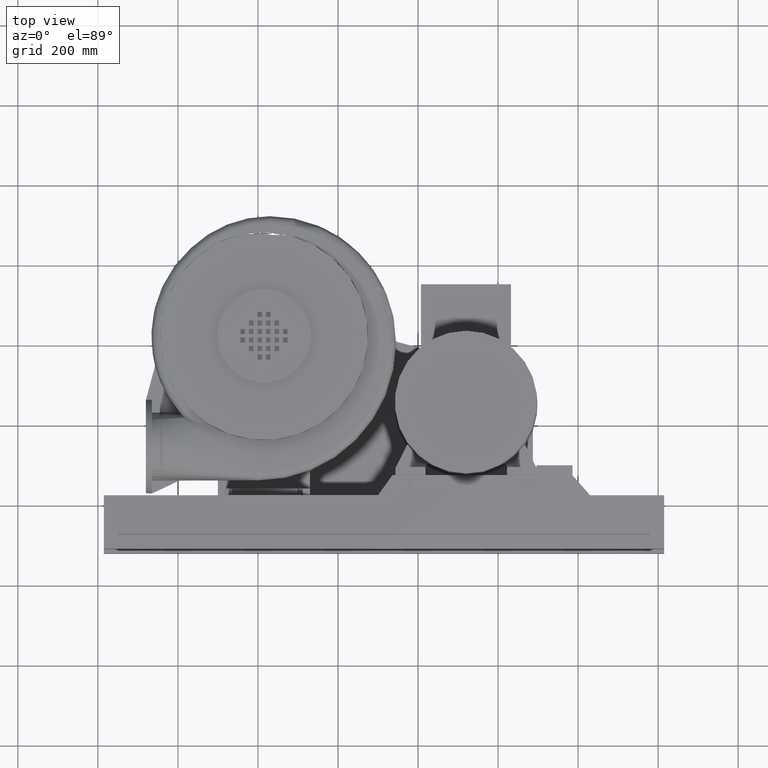
[diagram: clean part render]
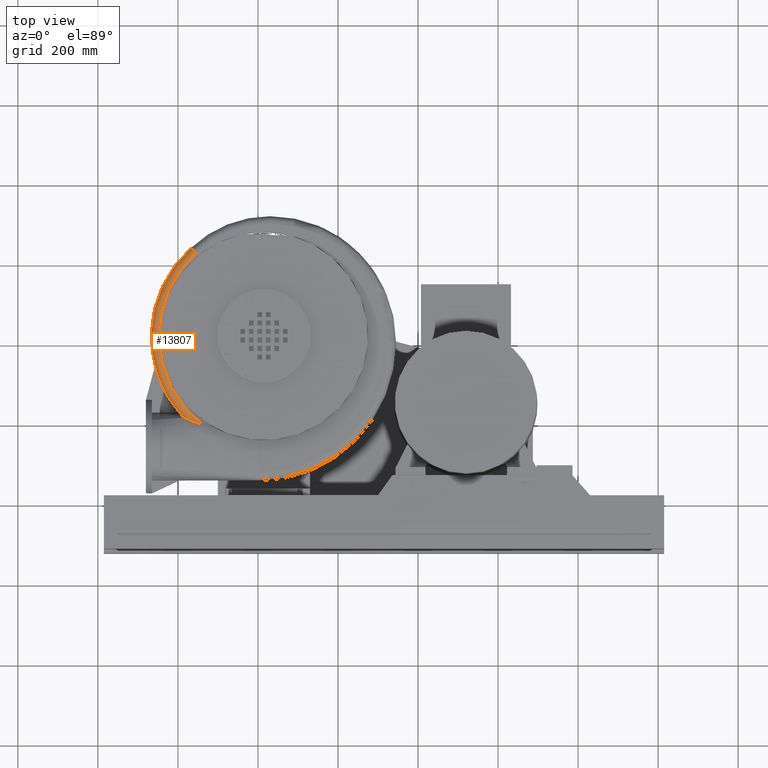
[diagram: same view with one face highlighted and labeled with its STEP entity id]
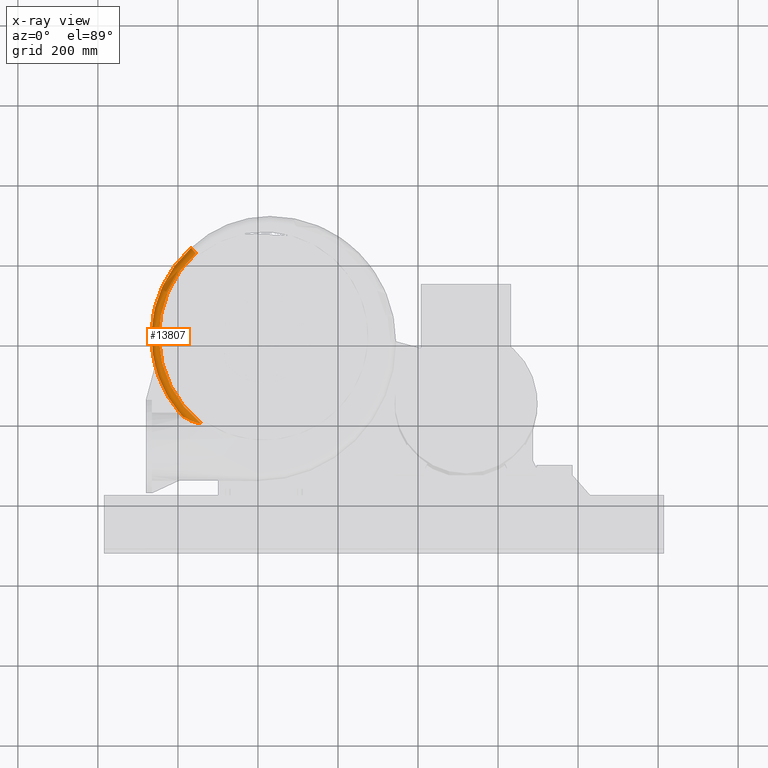
[diagram: x-ray of the same camera — body ghosted, the highlighted face saturated]
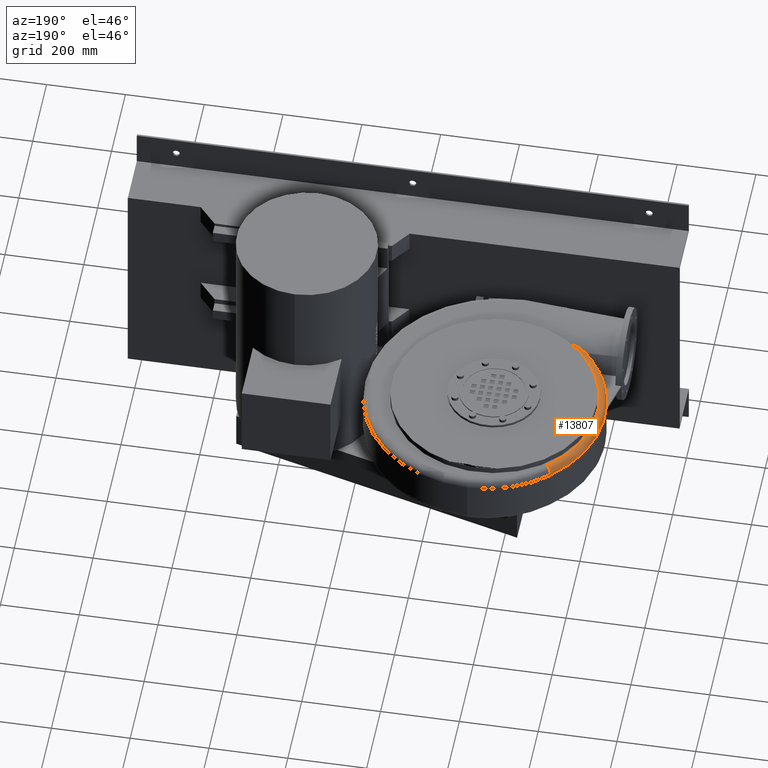
[diagram: same view with one face highlighted and labeled with its STEP entity id]
A machine part, top view. The second image highlights one B-rep face of the part: STEP entity #13807.
The next image is the same camera in x-ray: the body ghosted, the highlighted face saturated — about 0% of this face is hidden behind the body in this view.
A second angle (auxiliary view) of the same face is appended — the face is thin or edge-on in the first view.
In plain terms, the highlighted toroidal blend (fillet) surface has major radius 278 mm and minor (blend) radius 18 mm.
Its self-contained STEP definition (entity closure, byte-faithful):
#13720=CARTESIAN_POINT('',(-167.43618941037317,235.53333333333345,49.499999999999915));
#13721=VERTEX_POINT('',#13720);
#13729=CARTESIAN_POINT('',(-155.19419237354373,222.3333333333332,67.499999999999915));
#13730=VERTEX_POINT('',#13729);
#13731=CARTESIAN_POINT('',(-155.19419237354373,222.3333333333332,67.499999999999915));
#13732=CARTESIAN_POINT('',(-155.20071336581015,222.34036446363956,67.499999999999915));
#13733=CARTESIAN_POINT('',(-155.20723435682709,222.34739559272447,67.499992339340025));
#13734=CARTESIAN_POINT('',(-156.03273150284258,223.23747155980527,67.498052800552287));
#13735=CARTESIAN_POINT('',(-156.84951386152258,224.11815544676332,67.375301420065711));
#13736=CARTESIAN_POINT('',(-158.45411250034505,225.84829908996159,66.891832147624314));
#13737=CARTESIAN_POINT('',(-159.23789187840543,226.69340607967783,66.53233471986961));
#13738=CARTESIAN_POINT('',(-161.4579250546422,229.08715793586549,65.142045660403284));
#13739=CARTESIAN_POINT('',(-162.78849036491593,230.52185395685851,63.811209274200628));
#13740=CARTESIAN_POINT('',(-165.02764017208051,232.93625307770924,60.474660104682073));
#13741=CARTESIAN_POINT('',(-165.91488514568582,233.89294615211352,58.500953948427139));
#13742=CARTESIAN_POINT('',(-167.12492569285212,235.19770364350296,54.164631659347521));
#13743=CARTESIAN_POINT('',(-167.43618941037295,235.53333333333367,51.843528414551514));
#13744=CARTESIAN_POINT('',(-167.43618941037295,235.53333333333367,49.499999999999915));
#13745=B_SPLINE_CURVE_WITH_KNOTS('',3,(#13731,#13732,#13733,#13734,#13735,#13736,#13737,#13738,#13739,#13740,#13741,#13742,#13743,#13744),.UNSPECIFIED.,.F.,.U.,(4,2,2,2,2,2,4),(-2.834885175046392,-2.83200831798652,-2.470701269327635,-2.109400304045128,-1.406172609260185,-0.703058524365479,0.0),.UNSPECIFIED.);
#13746=EDGE_CURVE('',#13730,#13721,#13745,.T.);
#13758=CARTESIAN_POINT('',(30.000000000000053,14.999999999999867,49.499999999999964));
#13759=DIRECTION('',(6.833984E-031,-2.368476E-016,-1.0));
#13760=DIRECTION('',(-1.0,0.0,0.0));
#13761=AXIS2_PLACEMENT_3D('',#13758,#13759,#13760);
#13762=TOROIDAL_SURFACE('',#13761,278.0,18.0);
#13763=CARTESIAN_POINT('',(-182.29518174591624,-188.16894662575038,58.033999099305682));
#13764=VERTEX_POINT('',#13763);
#13765=CARTESIAN_POINT('',(-142.58720379928317,-202.9395720945252,67.500000000000014));
#13766=VERTEX_POINT('',#13765);
#13767=CARTESIAN_POINT('',(-182.29518174591621,-188.16894662575035,58.033999099305689));
#13768=CARTESIAN_POINT('',(-174.82858880499765,-192.86698520567055,62.019479937472013));
#13769=CARTESIAN_POINT('',(-165.8575359455719,-197.02137360786014,64.475752044287859));
#13770=CARTESIAN_POINT('',(-153.57445389169962,-201.28900611731677,66.704578514908832));
#13771=CARTESIAN_POINT('',(-149.20088505081378,-202.44059342568113,67.211587700186456));
#13772=CARTESIAN_POINT('',(-144.65687713610743,-202.92543288885398,67.462846296019464));
#13773=CARTESIAN_POINT('',(-143.60396125265856,-202.98442835631784,67.500000000000014));
#13774=CARTESIAN_POINT('',(-142.58720379928317,-202.93957209452526,67.500000000000014));
#13775=B_SPLINE_CURVE_WITH_KNOTS('',3,(#13767,#13768,#13769,#13770,#13771,#13772,#13773,#13774),.UNSPECIFIED.,.F.,.U.,(4,2,2,4),(0.0,2.904050115608655,4.6215907110657,5.10169561148826),.UNSPECIFIED.);
#13776=EDGE_CURVE('',#13764,#13766,#13775,.T.);
#13777=ORIENTED_EDGE('',*,*,#13776,.T.);
#13778=CARTESIAN_POINT('',(30.000000000000053,14.999999999999872,67.499999999999972));
#13779=DIRECTION('',(-6.964126E-017,-2.264128E-017,-1.0));
#13780=DIRECTION('',(-0.951002462149348,-0.309183306447612,7.322932E-017));
#13781=AXIS2_PLACEMENT_3D('',#13778,#13779,#13780);
#13782=CIRCLE('',#13781,278.0);
#13783=EDGE_CURVE('',#13766,#13730,#13782,.T.);
#13784=ORIENTED_EDGE('',*,*,#13783,.T.);
#13785=ORIENTED_EDGE('',*,*,#13746,.T.);
#13786=CARTESIAN_POINT('',(-188.37789103908597,-184.81765864237605,49.500000000000014));
#13787=VERTEX_POINT('',#13786);
#13788=CARTESIAN_POINT('',(30.000000000000053,14.999999999999867,49.499999999999964));
#13789=DIRECTION('',(6.964126E-017,2.264128E-017,1.0));
#13790=DIRECTION('',(-0.951002462149348,-0.309183306447612,7.322932E-017));
#13791=AXIS2_PLACEMENT_3D('',#13788,#13789,#13790);
#13792=CIRCLE('',#13791,296.0);
#13793=EDGE_CURVE('',#13721,#13787,#13792,.T.);
#13794=ORIENTED_EDGE('',*,*,#13793,.T.);
#13795=CARTESIAN_POINT('',(-188.37789103908602,-184.81807406551206,49.499501985072314));
#13796=CARTESIAN_POINT('',(-187.82702772773106,-185.42007756171859,51.033080861481722));
#13797=CARTESIAN_POINT('',(-187.02598751700393,-186.00054554851653,52.489007723996927));
#13798=CARTESIAN_POINT('',(-186.06835072310102,-186.53541792997456,53.839299134766833));
#13799=CARTESIAN_POINT('',(-184.99184266929919,-187.13668391093358,55.357201942691781));
#13800=CARTESIAN_POINT('',(-183.7041394355395,-187.68788741731828,56.761310539071886));
#13801=CARTESIAN_POINT('',(-182.29518174591624,-188.16894662575038,58.033999099305696));
#13802=B_SPLINE_CURVE_WITH_KNOTS('',3,(#13795,#13796,#13797,#13798,#13799,#13800,#13801),.UNSPECIFIED.,.F.,.U.,(4,3,4),(0.000262802662768,0.521391874350161,1.107208591340905),.UNSPECIFIED.);
#13803=EDGE_CURVE('',#13787,#13764,#13802,.T.);
#13804=ORIENTED_EDGE('',*,*,#13803,.T.);
#13805=EDGE_LOOP('',(#13777,#13784,#13785,#13794,#13804));
#13806=FACE_OUTER_BOUND('',#13805,.T.);
#13807=ADVANCED_FACE('',(#13806),#13762,.T.);